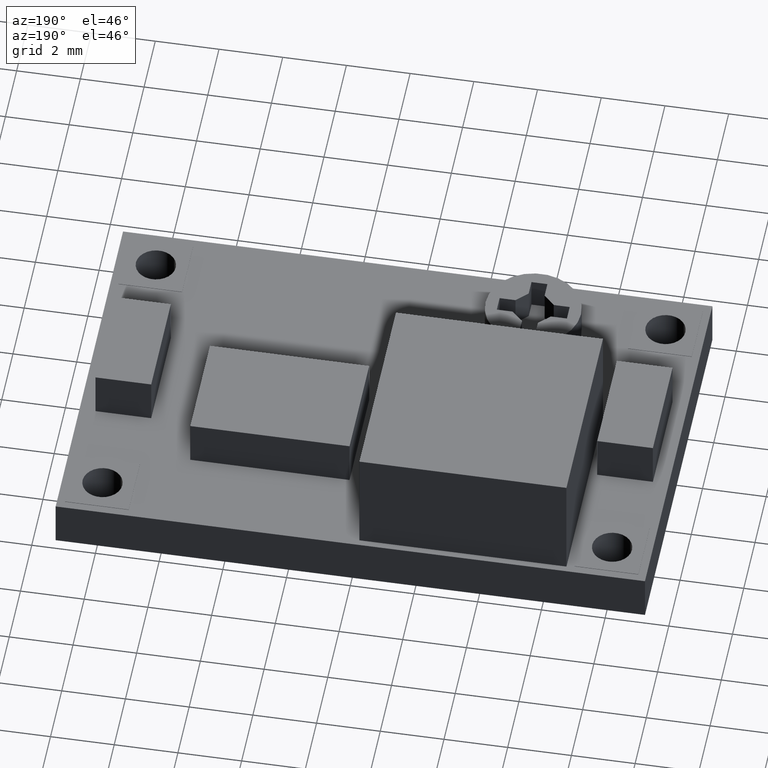
[diagram: clean part render]
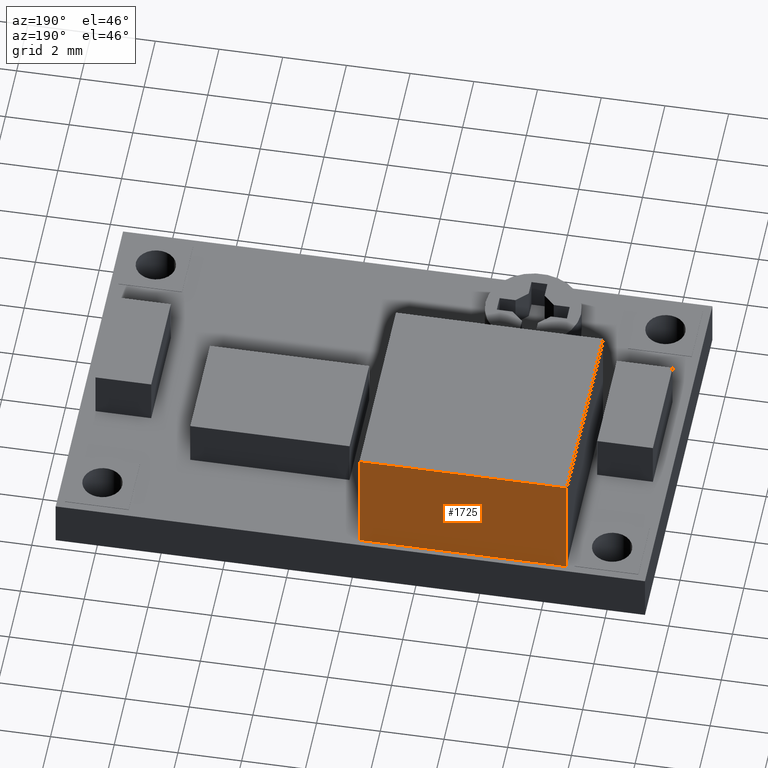
[diagram: same view with one face highlighted and labeled with its STEP entity id]
A machine part, auxiliary view. The second image highlights one B-rep face of the part: STEP entity #1725.
In plain terms, the highlighted planar face has unit normal (0, 1, 0).
Its self-contained STEP definition (entity closure, byte-faithful):
#130=FACE_OUTER_BOUND('',#228,.T.);
#228=EDGE_LOOP('',(#1383,#1384,#1385,#1386));
#439=LINE('',#2669,#648);
#440=LINE('',#2672,#649);
#441=LINE('',#2674,#650);
#442=LINE('',#2675,#651);
#648=VECTOR('',#2216,10.);
#649=VECTOR('',#2219,10.);
#650=VECTOR('',#2220,10.);
#651=VECTOR('',#2221,10.);
#800=VERTEX_POINT('',#2663);
#802=VERTEX_POINT('',#2667);
#803=VERTEX_POINT('',#2671);
#804=VERTEX_POINT('',#2673);
#1013=EDGE_CURVE('',#800,#802,#439,.T.);
#1014=EDGE_CURVE('',#800,#803,#440,.T.);
#1015=EDGE_CURVE('',#804,#802,#441,.T.);
#1016=EDGE_CURVE('',#803,#804,#442,.T.);
#1383=ORIENTED_EDGE('',*,*,#1014,.F.);
#1384=ORIENTED_EDGE('',*,*,#1013,.T.);
#1385=ORIENTED_EDGE('',*,*,#1015,.F.);
#1386=ORIENTED_EDGE('',*,*,#1016,.F.);
#1546=PLANE('',#1838);
#1725=ADVANCED_FACE('',(#130),#1546,.T.);
#1838=AXIS2_PLACEMENT_3D('',#2670,#2217,#2218);
#2216=DIRECTION('',(0.,-2.22044604925031E-16,1.));
#2217=DIRECTION('center_axis',(0.,1.,2.22044604925031E-16));
#2218=DIRECTION('ref_axis',(-1.,0.,0.));
#2219=DIRECTION('',(1.,0.,0.));
#2220=DIRECTION('',(-1.,0.,0.));
#2221=DIRECTION('',(0.,-2.22044604925031E-16,1.));
#2663=CARTESIAN_POINT('',(-6.75,-0.210000000000002,-4.49));
#2667=CARTESIAN_POINT('',(-6.75,-0.210000000000004,-0.990000000000001));
#2669=CARTESIAN_POINT('',(-6.75,-0.210000000000002,-4.49));
#2670=CARTESIAN_POINT('Origin',(-0.25,-0.210000000000002,-4.49));
#2671=CARTESIAN_POINT('',(-0.25,-0.210000000000002,-4.49));
#2672=CARTESIAN_POINT('',(-0.125,-0.210000000000002,-4.49));
#2673=CARTESIAN_POINT('',(-0.25,-0.210000000000004,-0.990000000000001));
#2674=CARTESIAN_POINT('',(-6.75,-0.210000000000004,-0.990000000000001));
#2675=CARTESIAN_POINT('',(-0.25,-0.210000000000002,-4.49));